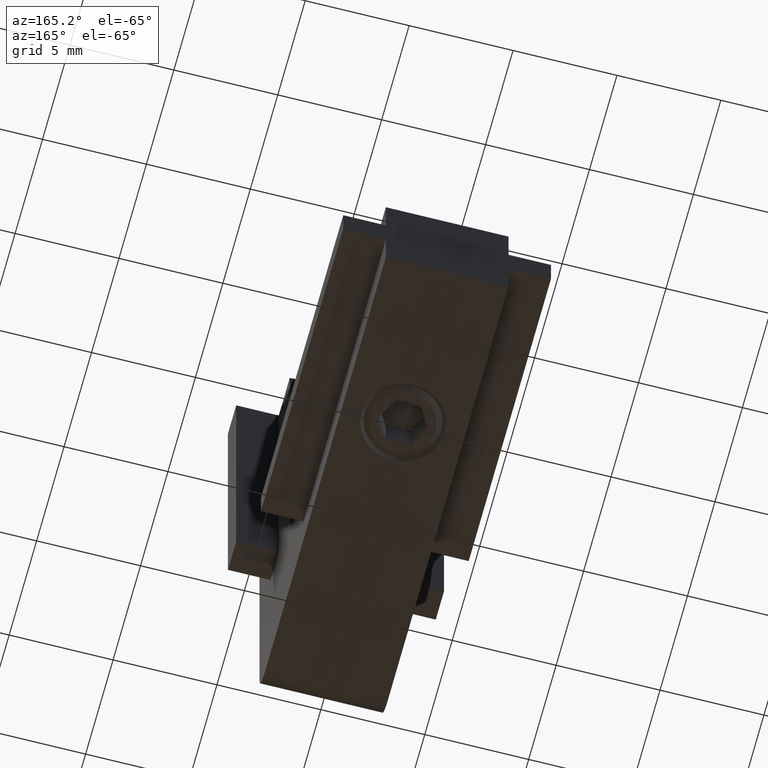
[diagram: clean part render]
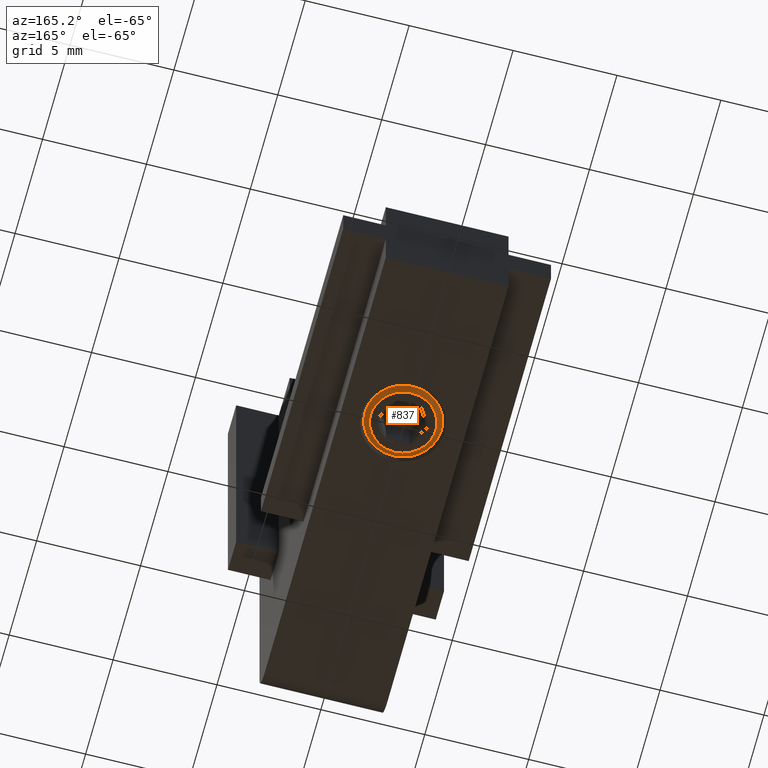
[diagram: same view with one face highlighted and labeled with its STEP entity id]
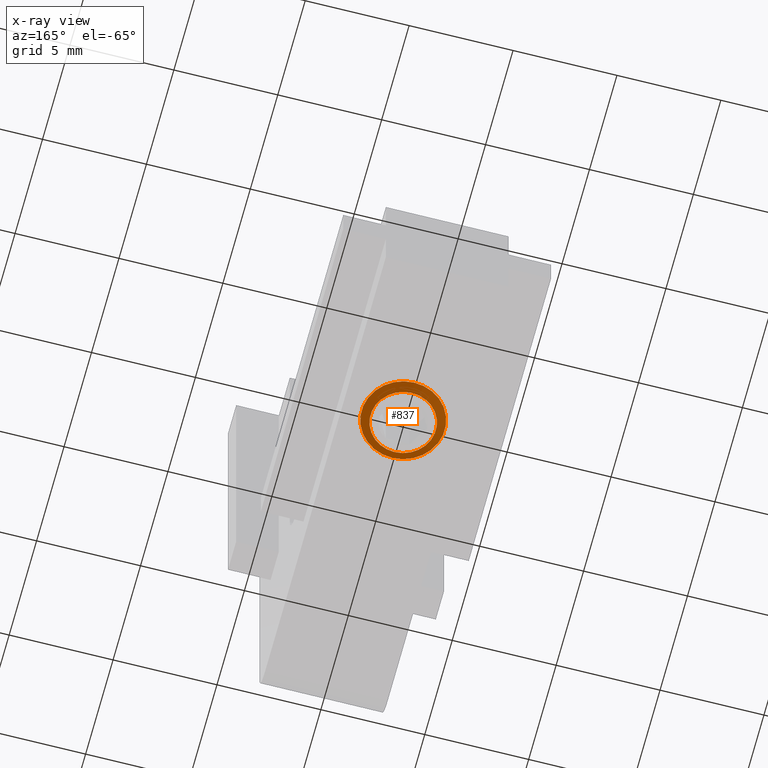
[diagram: x-ray of the same camera — body ghosted, the highlighted face saturated]
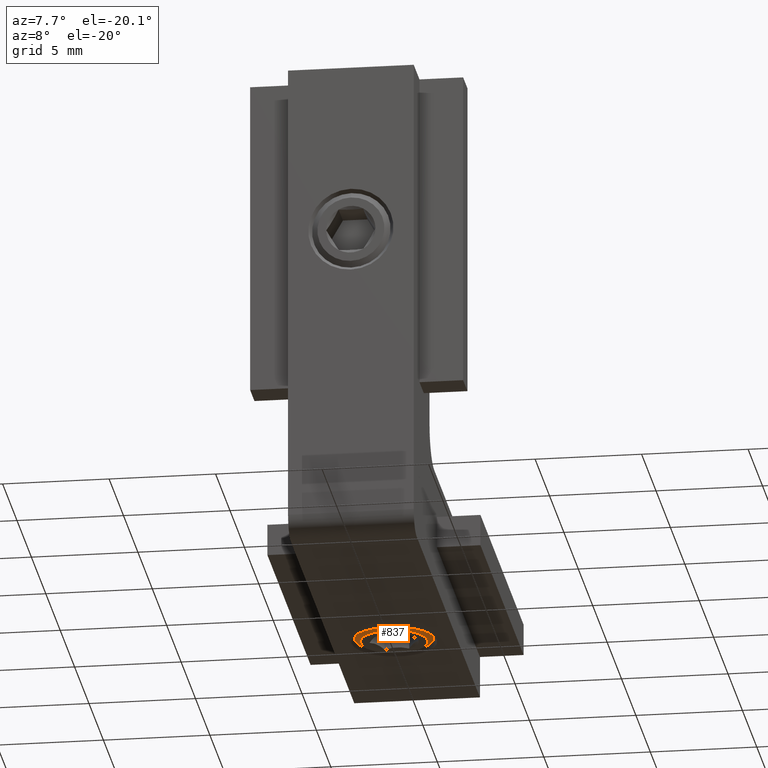
[diagram: same view with one face highlighted and labeled with its STEP entity id]
A machine part, auxiliary view. The second image highlights one B-rep face of the part: STEP entity #837.
The next image is the same camera in x-ray: the body ghosted, the highlighted face saturated — about 0% of this face is hidden behind the body in this view.
A second angle (auxiliary view) of the same face is appended — the face is thin or edge-on in the first view.
In plain terms, the highlighted conical surface has half-angle 60 deg.
Its self-contained STEP definition (entity closure, byte-faithful):
#56=CONICAL_SURFACE('',#935,2.,1.0471975511966);
#394=ORIENTED_EDGE('',*,*,#528,.F.);
#395=ORIENTED_EDGE('',*,*,#527,.T.);
#527=EDGE_CURVE('',#605,#605,#633,.T.);
#528=EDGE_CURVE('',#606,#606,#634,.T.);
#605=VERTEX_POINT('',#1399);
#606=VERTEX_POINT('',#1402);
#633=CIRCLE('',#934,2.);
#634=CIRCLE('',#936,1.5705);
#688=EDGE_LOOP('',(#394));
#689=EDGE_LOOP('',(#395));
#752=FACE_BOUND('',#688,.T.);
#753=FACE_BOUND('',#689,.T.);
#837=ADVANCED_FACE('',(#752,#753),#56,.T.);
#934=AXIS2_PLACEMENT_3D('',#1398,#1141,#1142);
#935=AXIS2_PLACEMENT_3D('',#1400,#1143,#1144);
#936=AXIS2_PLACEMENT_3D('',#1401,#1145,#1146);
#1141=DIRECTION('',(-1.,-6.12323399573677E-17,0.));
#1142=DIRECTION('',(6.12323399573677E-17,-1.,0.));
#1143=DIRECTION('',(1.,6.12323399573677E-17,0.));
#1144=DIRECTION('',(-6.12323399573677E-17,1.,0.));
#1145=DIRECTION('',(-1.,-6.12323399573677E-17,0.));
#1146=DIRECTION('',(6.12323399573677E-17,-1.,0.));
#1398=CARTESIAN_POINT('',(0.247971940616944,1.51839021677449E-17,0.));
#1399=CARTESIAN_POINT('',(0.247971940616944,-2.,0.));
#1400=CARTESIAN_POINT('',(0.247971940616944,1.51839021677449E-17,0.));
#1401=CARTESIAN_POINT('',(0.,0.,0.));
#1402=CARTESIAN_POINT('',(9.61653899030459E-17,-1.5705,0.));